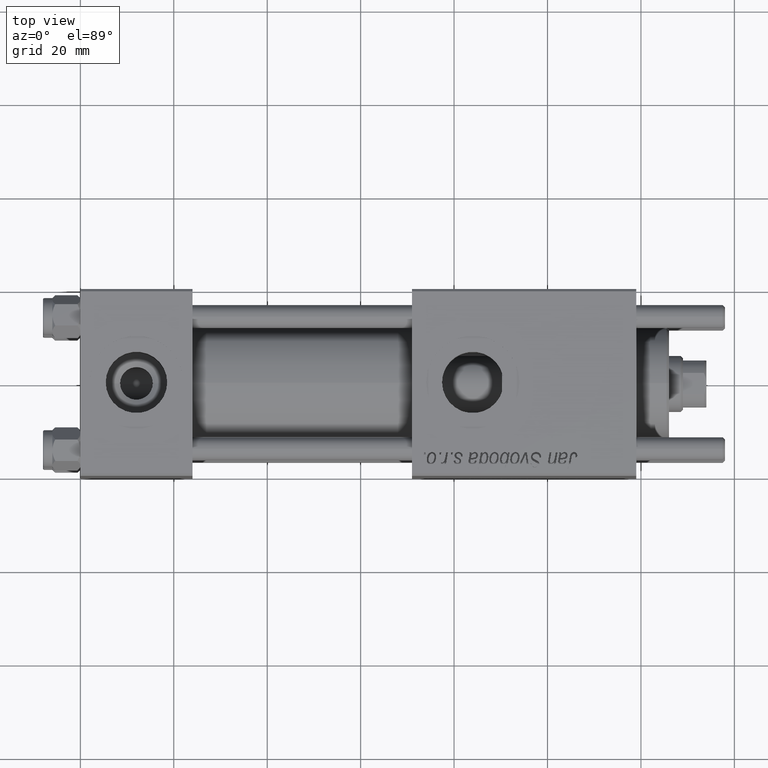
[diagram: clean part render]
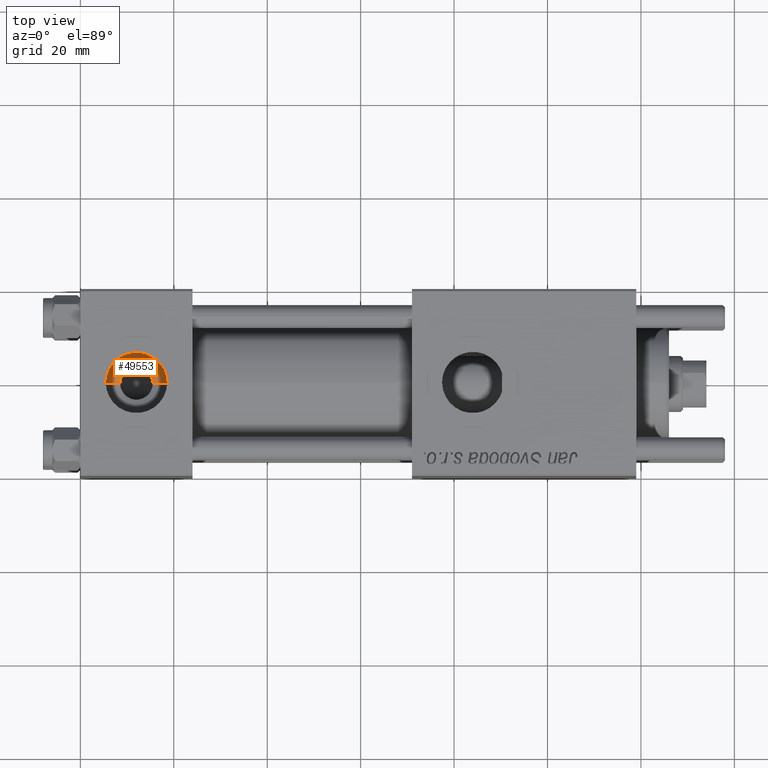
[diagram: same view with one face highlighted and labeled with its STEP entity id]
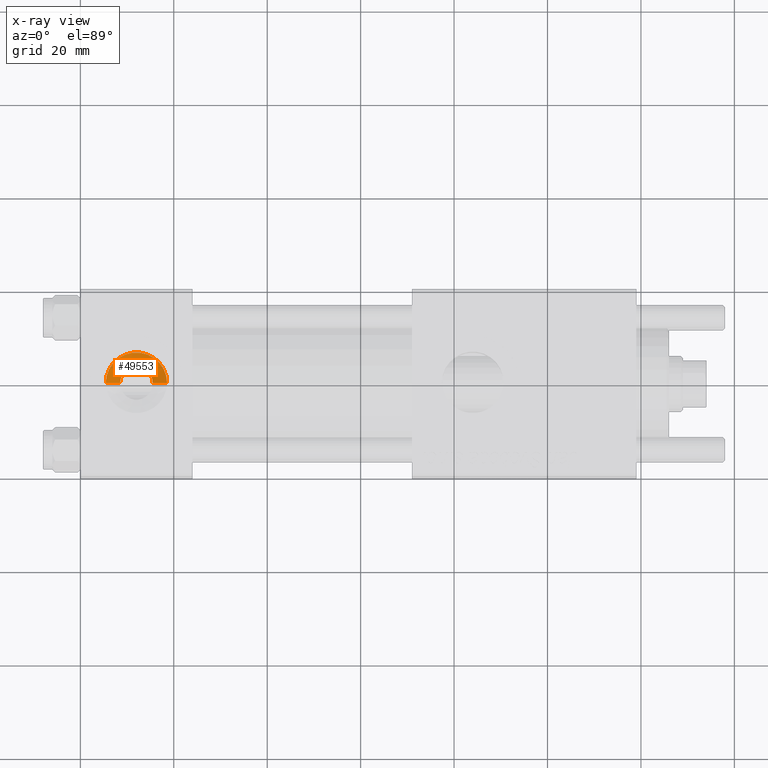
[diagram: x-ray of the same camera — body ghosted, the highlighted face saturated]
A machine part, top view. The second image highlights one B-rep face of the part: STEP entity #49553.
The next image is the same camera in x-ray: the body ghosted, the highlighted face saturated — about 0% of this face is hidden behind the body in this view.
In plain terms, the highlighted conical surface has half-angle 60.452 deg.
Its self-contained STEP definition (entity closure, byte-faithful):
#82 = CARTESIAN_POINT ( 'NONE',  ( 12.00000000000000000, 1.540743955509788682E-30, 7.419999999999996376 ) ) ;
#795 = VECTOR ( 'NONE', #34144, 1000.000000000000000 ) ;
#1112 = ORIENTED_EDGE ( 'NONE', *, *, #41111, .F. ) ;
#2682 = CARTESIAN_POINT ( 'NONE',  ( 5.420000000000000817, 8.058175938389596335E-16, 9.165987261146492315 ) ) ;
#5303 = ORIENTED_EDGE ( 'NONE', *, *, #9766, .F. ) ;
#5342 = AXIS2_PLACEMENT_3D ( 'NONE', #26267, #40596, #18779 ) ;
#5343 = CARTESIAN_POINT ( 'NONE',  ( 18.57999999999999829, 1.540743955509788682E-30, 9.165987261146492315 ) ) ;
#5582 = FACE_OUTER_BOUND ( 'NONE', #7614, .T. ) ;
#6517 = CIRCLE ( 'NONE', #23944, 6.579999999999999183 ) ;
#7614 = EDGE_LOOP ( 'NONE', ( #39569, #1112, #28324, #5303 ) ) ;
#9488 = VERTEX_POINT ( 'NONE', #55442 ) ;
#9766 = EDGE_CURVE ( 'NONE', #12713, #35019, #6517, .T. ) ;
#12713 = VERTEX_POINT ( 'NONE', #2682 ) ;
#13274 = CARTESIAN_POINT ( 'NONE',  ( 15.50000000000000000, 1.540743955509788682E-30, 7.419999999999996376 ) ) ;
#17575 = LINE ( 'NONE', #13274, #39044 ) ;
#18779 = DIRECTION ( 'NONE',  ( 1.000000000000000000, 0.000000000000000000, 0.000000000000000000 ) ) ;
#19280 = DIRECTION ( 'NONE',  ( 0.8699429503561852961, 0.000000000000000000, 0.4931523731318503412 ) ) ;
#20927 = DIRECTION ( 'NONE',  ( -0.000000000000000000, -0.000000000000000000, -1.000000000000000000 ) ) ;
#23944 = AXIS2_PLACEMENT_3D ( 'NONE', #43016, #20927, #56493 ) ;
#24681 = LINE ( 'NONE', #42166, #795 ) ;
#26267 = CARTESIAN_POINT ( 'NONE',  ( 12.00000000000000000, 1.540743955509788682E-30, 7.419999999999996376 ) ) ;
#28324 = ORIENTED_EDGE ( 'NONE', *, *, #30329, .T. ) ;
#30329 = EDGE_CURVE ( 'NONE', #9488, #35019, #17575, .T. ) ;
#30990 = CONICAL_SURFACE ( 'NONE', #5342, 3.499999999999999556, 1.055086625138361267 ) ;
#31017 = VERTEX_POINT ( 'NONE', #52835 ) ;
#34144 = DIRECTION ( 'NONE',  ( -0.8699429503561852961, 1.065372849594507103E-16, 0.4931523731318503412 ) ) ;
#35019 = VERTEX_POINT ( 'NONE', #5343 ) ;
#38733 = EDGE_CURVE ( 'NONE', #31017, #12713, #24681, .T. ) ;
#39044 = VECTOR ( 'NONE', #19280, 1000.000000000000000 ) ;
#39569 = ORIENTED_EDGE ( 'NONE', *, *, #38733, .F. ) ;
#40051 = CIRCLE ( 'NONE', #53790, 3.499999999999999556 ) ;
#40596 = DIRECTION ( 'NONE',  ( 0.000000000000000000, 0.000000000000000000, 1.000000000000000000 ) ) ;
#41111 = EDGE_CURVE ( 'NONE', #9488, #31017, #40051, .T. ) ;
#42166 = CARTESIAN_POINT ( 'NONE',  ( 8.500000000000000000, 4.286263797015751879E-16, 7.419999999999996376 ) ) ;
#43016 = CARTESIAN_POINT ( 'NONE',  ( 12.00000000000000000, 1.540743955509788682E-30, 9.165987261146492315 ) ) ;
#48021 = DIRECTION ( 'NONE',  ( 1.000000000000000000, 0.000000000000000000, 0.000000000000000000 ) ) ;
#48297 = DIRECTION ( 'NONE',  ( 0.000000000000000000, 0.000000000000000000, 1.000000000000000000 ) ) ;
#49553 = ADVANCED_FACE ( 'NONE', ( #5582 ), #30990, .F. ) ;
#52835 = CARTESIAN_POINT ( 'NONE',  ( 8.500000000000000000, 4.286263797015752865E-16, 7.419999999999996376 ) ) ;
#53790 = AXIS2_PLACEMENT_3D ( 'NONE', #82, #48297, #48021 ) ;
#55442 = CARTESIAN_POINT ( 'NONE',  ( 15.50000000000000000, 1.540743955509788682E-30, 7.419999999999996376 ) ) ;
#56493 = DIRECTION ( 'NONE',  ( 1.000000000000000000, 0.000000000000000000, 0.000000000000000000 ) ) ;